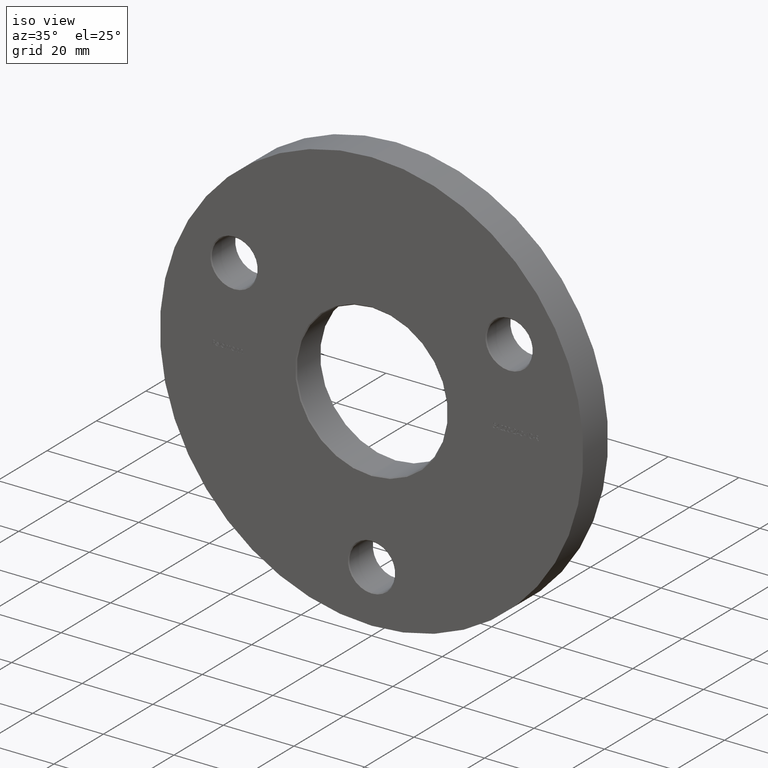
[diagram: clean part render]
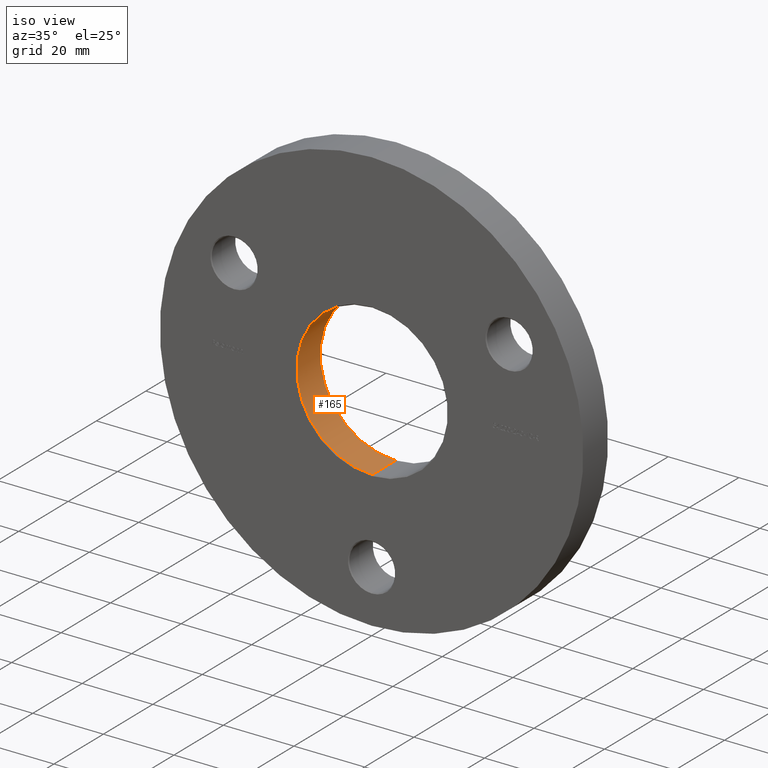
[diagram: same view with one face highlighted and labeled with its STEP entity id]
A machine part, iso view. The second image highlights one B-rep face of the part: STEP entity #165.
In plain terms, the highlighted cylindrical surface (partial cylindrical patch) has radius 21.4 mm, axis along (-0, 1, -0).
Its self-contained STEP definition (entity closure, byte-faithful):
#165 = ADVANCED_FACE ( 'NONE', ( #6612 ), #1906, .F. ) ;
#1028 = EDGE_CURVE ( 'NONE', #3318, #3598, #7911, .T. ) ;
#1453 = CARTESIAN_POINT ( 'NONE',  ( 0.000000000000000000, 0.000000000000000000, 21.39999999999999858 ) ) ;
#1583 = CARTESIAN_POINT ( 'NONE',  ( 0.000000000000000000, 0.2500000000000071609, 21.39999999999999858 ) ) ;
#1906 = CYLINDRICAL_SURFACE ( 'NONE', #12104, 21.39999999999999858 ) ;
#2617 = EDGE_CURVE ( 'NONE', #3598, #15469, #8456, .T. ) ;
#2842 = CARTESIAN_POINT ( 'NONE',  ( 0.000000000000000000, 0.2500000000000071609, 0.000000000000000000 ) ) ;
#2855 = VECTOR ( 'NONE', #13739, 1000.000000000000000 ) ;
#3089 = ORIENTED_EDGE ( 'NONE', *, *, #12326, .T. ) ;
#3318 = VERTEX_POINT ( 'NONE', #11662 ) ;
#3598 = VERTEX_POINT ( 'NONE', #14042 ) ;
#4219 = CARTESIAN_POINT ( 'NONE',  ( 0.000000000000000000, 9.750000000000010658, 21.39999999999999858 ) ) ;
#4568 = ORIENTED_EDGE ( 'NONE', *, *, #13289, .F. ) ;
#5180 = AXIS2_PLACEMENT_3D ( 'NONE', #7176, #7125, #13410 ) ;
#5756 = DIRECTION ( 'NONE',  ( -0.000000000000000000, 1.000000000000000000, -0.000000000000000000 ) ) ;
#6090 = LINE ( 'NONE', #1453, #2855 ) ;
#6612 = FACE_OUTER_BOUND ( 'NONE', #7585, .T. ) ;
#7125 = DIRECTION ( 'NONE',  ( 0.000000000000000000, 1.000000000000000000, 0.000000000000000000 ) ) ;
#7176 = CARTESIAN_POINT ( 'NONE',  ( 0.000000000000000000, 9.750000000000010658, 0.000000000000000000 ) ) ;
#7278 = DIRECTION ( 'NONE',  ( -0.000000000000000000, 1.000000000000000000, -0.000000000000000000 ) ) ;
#7585 = EDGE_LOOP ( 'NONE', ( #3089, #7764, #12242, #4568 ) ) ;
#7764 = ORIENTED_EDGE ( 'NONE', *, *, #1028, .T. ) ;
#7911 = LINE ( 'NONE', #10566, #8483 ) ;
#8280 = DIRECTION ( 'NONE',  ( 0.000000000000000000, 0.000000000000000000, 1.000000000000000000 ) ) ;
#8456 = CIRCLE ( 'NONE', #5180, 21.39999999999999858 ) ;
#8483 = VECTOR ( 'NONE', #5756, 1000.000000000000000 ) ;
#9885 = CIRCLE ( 'NONE', #13744, 21.39999999999999858 ) ;
#10566 = CARTESIAN_POINT ( 'NONE',  ( 2.620744150175335878E-15, 0.000000000000000000, -21.39999999999999858 ) ) ;
#11662 = CARTESIAN_POINT ( 'NONE',  ( 2.620744150175335878E-15, 0.2500000000000071609, -21.39999999999999858 ) ) ;
#12104 = AXIS2_PLACEMENT_3D ( 'NONE', #15585, #7278, #8280 ) ;
#12242 = ORIENTED_EDGE ( 'NONE', *, *, #2617, .T. ) ;
#12326 = EDGE_CURVE ( 'NONE', #14596, #3318, #9885, .T. ) ;
#12411 = DIRECTION ( 'NONE',  ( 0.000000000000000000, 0.000000000000000000, 1.000000000000000000 ) ) ;
#12557 = DIRECTION ( 'NONE',  ( -0.000000000000000000, -1.000000000000000000, -0.000000000000000000 ) ) ;
#13289 = EDGE_CURVE ( 'NONE', #14596, #15469, #6090, .T. ) ;
#13410 = DIRECTION ( 'NONE',  ( 0.000000000000000000, 0.000000000000000000, 1.000000000000000000 ) ) ;
#13739 = DIRECTION ( 'NONE',  ( -0.000000000000000000, 1.000000000000000000, -0.000000000000000000 ) ) ;
#13744 = AXIS2_PLACEMENT_3D ( 'NONE', #2842, #12557, #12411 ) ;
#14042 = CARTESIAN_POINT ( 'NONE',  ( 2.620744150175335878E-15, 9.750000000000010658, -21.39999999999999858 ) ) ;
#14596 = VERTEX_POINT ( 'NONE', #1583 ) ;
#15469 = VERTEX_POINT ( 'NONE', #4219 ) ;
#15585 = CARTESIAN_POINT ( 'NONE',  ( 0.000000000000000000, 0.000000000000000000, 0.000000000000000000 ) ) ;